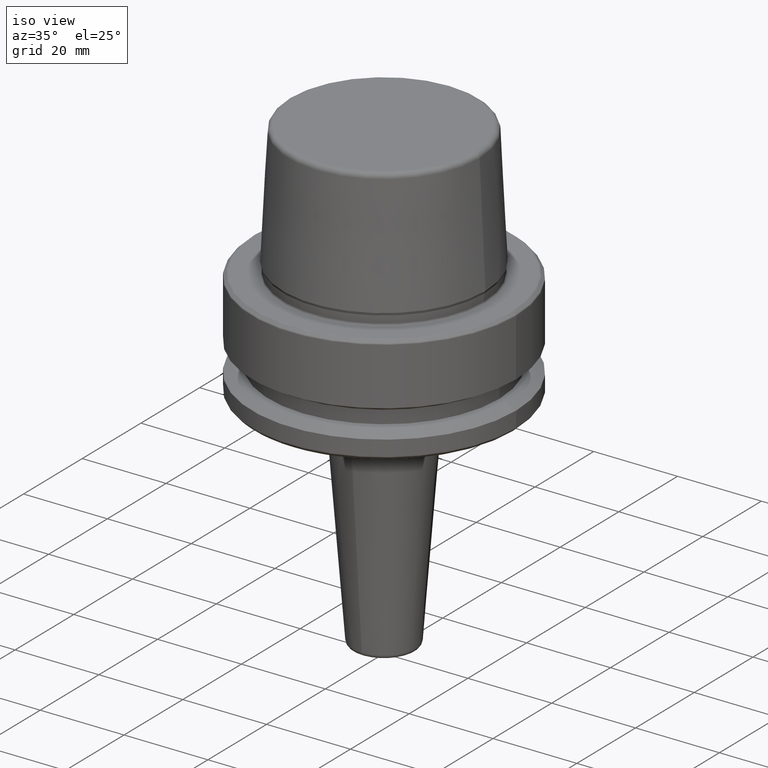
[diagram: clean part render]
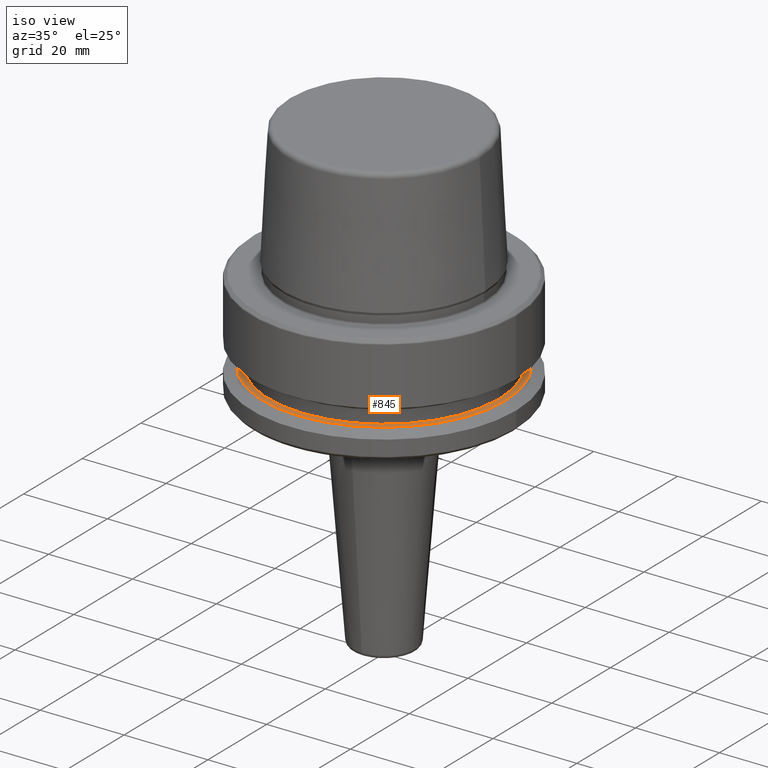
[diagram: same view with one face highlighted and labeled with its STEP entity id]
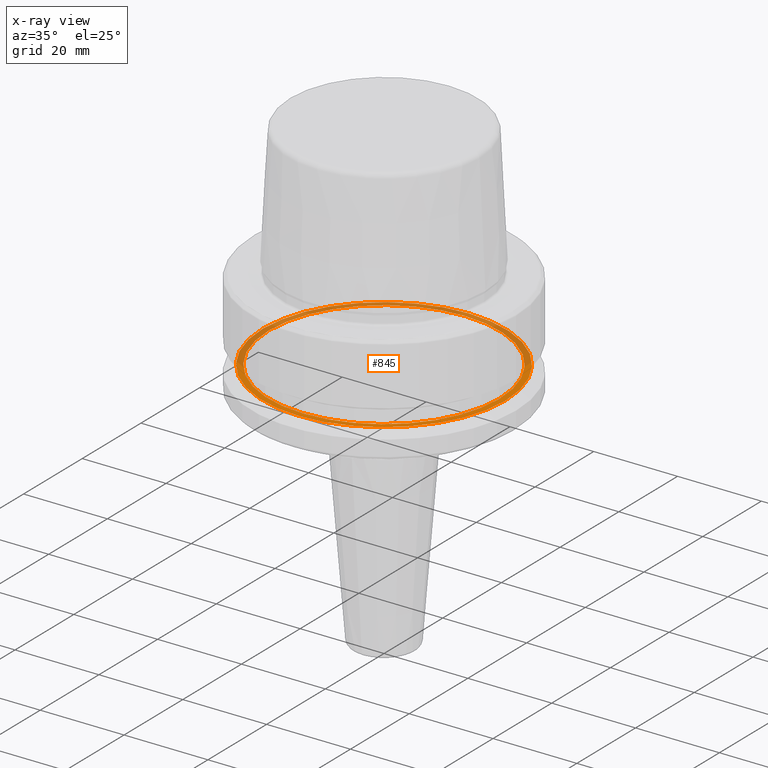
[diagram: x-ray of the same camera — body ghosted, the highlighted face saturated]
A machine part, iso view. The second image highlights one B-rep face of the part: STEP entity #845.
The next image is the same camera in x-ray: the body ghosted, the highlighted face saturated — about 50% of this face is hidden behind the body in this view.
In plain terms, the highlighted planar face has unit normal (0, 0, -1).
Its self-contained STEP definition (entity closure, byte-faithful):
#3 = CIRCLE ( 'NONE', #389, 27.49999999999999600 ) ;
#101 = VERTEX_POINT ( 'NONE', #1054 ) ;
#151 = EDGE_LOOP ( 'NONE', ( #821, #172 ) ) ;
#172 = ORIENTED_EDGE ( 'NONE', *, *, #1000, .T. ) ;
#188 = CARTESIAN_POINT ( 'NONE',  ( 0.0000000000000000000, 0.0000000000000000000, -19.90000000000001600 ) ) ;
#192 = VERTEX_POINT ( 'NONE', #210 ) ;
#210 = CARTESIAN_POINT ( 'NONE',  ( -27.49999999999999600, 3.367778697655220900E-015, -19.90000000000001600 ) ) ;
#213 = PLANE ( 'NONE',  #641 ) ;
#256 = CARTESIAN_POINT ( 'NONE',  ( 27.49999999999999600, 0.0000000000000000000, -19.90000000000001600 ) ) ;
#277 = VERTEX_POINT ( 'NONE', #256 ) ;
#293 = DIRECTION ( 'NONE',  ( 1.000000000000000000, 0.0000000000000000000, 0.0000000000000000000 ) ) ;
#299 = AXIS2_PLACEMENT_3D ( 'NONE', #533, #1208, #630 ) ;
#323 = DIRECTION ( 'NONE',  ( -1.000000000000000000, 0.0000000000000000000, -0.0000000000000000000 ) ) ;
#389 = AXIS2_PLACEMENT_3D ( 'NONE', #505, #1179, #600 ) ;
#390 = CARTESIAN_POINT ( 'NONE',  ( 28.94089653438085100, 3.700937523921292900E-015, -19.90000000000001600 ) ) ;
#446 = CARTESIAN_POINT ( 'NONE',  ( 0.0000000000000000000, 0.0000000000000000000, -19.90000000000001600 ) ) ;
#455 = FACE_OUTER_BOUND ( 'NONE', #151, .T. ) ;
#505 = CARTESIAN_POINT ( 'NONE',  ( 0.0000000000000000000, 0.0000000000000000000, -19.90000000000001600 ) ) ;
#533 = CARTESIAN_POINT ( 'NONE',  ( 0.0000000000000000000, 0.0000000000000000000, -19.90000000000001600 ) ) ;
#542 = DIRECTION ( 'NONE',  ( 1.000000000000000000, 0.0000000000000000000, 0.0000000000000000000 ) ) ;
#549 = AXIS2_PLACEMENT_3D ( 'NONE', #446, #1118, #542 ) ;
#561 = CIRCLE ( 'NONE', #299, 28.94089653438085100 ) ;
#600 = DIRECTION ( 'NONE',  ( 1.000000000000000000, 0.0000000000000000000, 0.0000000000000000000 ) ) ;
#630 = DIRECTION ( 'NONE',  ( 1.000000000000000000, 0.0000000000000000000, 0.0000000000000000000 ) ) ;
#641 = AXIS2_PLACEMENT_3D ( 'NONE', #699, #890, #323 ) ;
#659 = AXIS2_PLACEMENT_3D ( 'NONE', #188, #859, #293 ) ;
#699 = CARTESIAN_POINT ( 'NONE',  ( 0.0000000000000000000, 27.49999999999999600, -19.90000000000000900 ) ) ;
#730 = CIRCLE ( 'NONE', #549, 28.94089653438085100 ) ;
#821 = ORIENTED_EDGE ( 'NONE', *, *, #1035, .T. ) ;
#828 = EDGE_CURVE ( 'NONE', #192, #277, #3, .T. ) ;
#845 = ADVANCED_FACE ( 'NONE', ( #1192, #455 ), #213, .F. ) ;
#859 = DIRECTION ( 'NONE',  ( -0.0000000000000000000, -0.0000000000000000000, 1.000000000000000000 ) ) ;
#890 = DIRECTION ( 'NONE',  ( 0.0000000000000000000, 0.0000000000000000000, -1.000000000000000000 ) ) ;
#901 = ORIENTED_EDGE ( 'NONE', *, *, #1240, .F. ) ;
#926 = CIRCLE ( 'NONE', #659, 27.49999999999999600 ) ;
#1000 = EDGE_CURVE ( 'NONE', #1255, #101, #561, .T. ) ;
#1035 = EDGE_CURVE ( 'NONE', #101, #1255, #730, .T. ) ;
#1054 = CARTESIAN_POINT ( 'NONE',  ( -28.94089653438085100, 0.0000000000000000000, -19.90000000000001600 ) ) ;
#1118 = DIRECTION ( 'NONE',  ( -0.0000000000000000000, -0.0000000000000000000, 1.000000000000000000 ) ) ;
#1124 = ORIENTED_EDGE ( 'NONE', *, *, #828, .F. ) ;
#1179 = DIRECTION ( 'NONE',  ( -0.0000000000000000000, -0.0000000000000000000, 1.000000000000000000 ) ) ;
#1192 = FACE_BOUND ( 'NONE', #1239, .T. ) ;
#1208 = DIRECTION ( 'NONE',  ( -0.0000000000000000000, -0.0000000000000000000, 1.000000000000000000 ) ) ;
#1239 = EDGE_LOOP ( 'NONE', ( #901, #1124 ) ) ;
#1240 = EDGE_CURVE ( 'NONE', #277, #192, #926, .T. ) ;
#1255 = VERTEX_POINT ( 'NONE', #390 ) ;